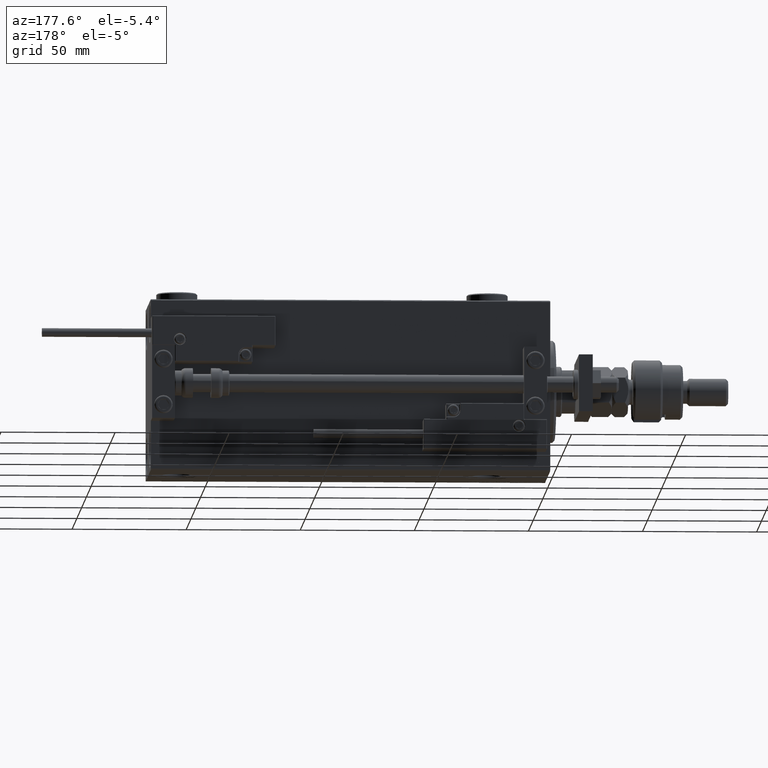
[diagram: clean part render]
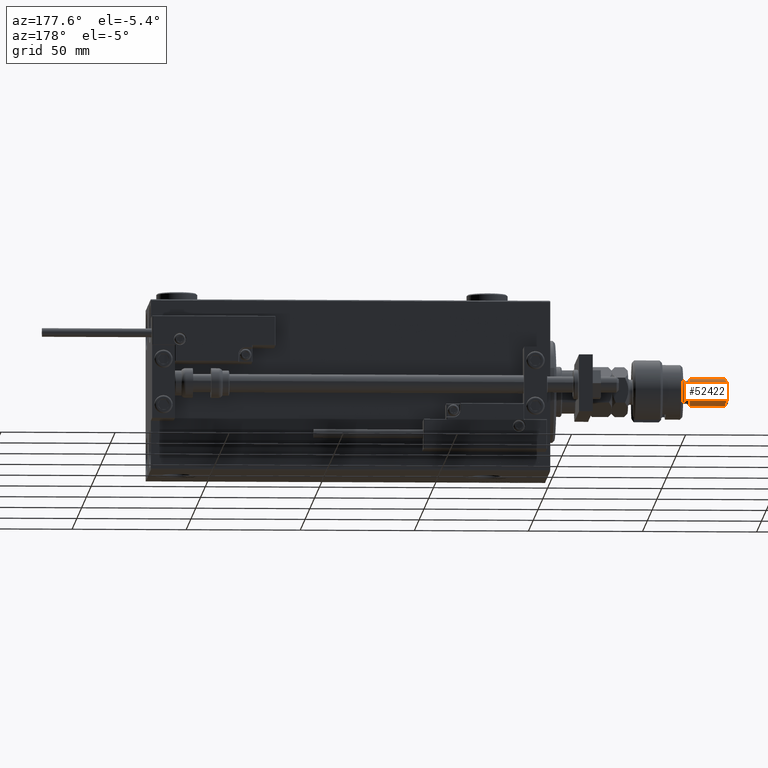
[diagram: same view with one face highlighted and labeled with its STEP entity id]
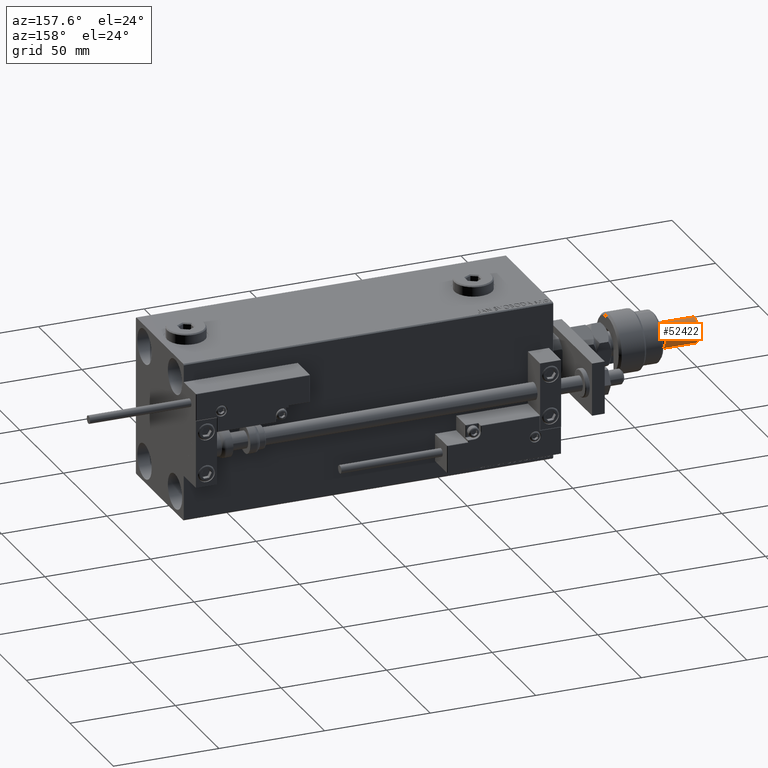
[diagram: same view with one face highlighted and labeled with its STEP entity id]
A machine part, auxiliary view. The second image highlights one B-rep face of the part: STEP entity #52422.
A second angle (auxiliary view) of the same face is appended — the face is thin or edge-on in the first view.
In plain terms, the highlighted cylindrical surface (edge-blend (fillet) strip) has radius 6 mm, axis along (1, -0, -0).
Its self-contained STEP definition (entity closure, byte-faithful):
#933 = VECTOR ( 'NONE', #22346, 1000.000000000000000 ) ;
#1511 = FACE_OUTER_BOUND ( 'NONE', #53483, .T. ) ;
#4824 = VECTOR ( 'NONE', #44621, 1000.000000000000000 ) ;
#5324 = VERTEX_POINT ( 'NONE', #31755 ) ;
#5630 = VERTEX_POINT ( 'NONE', #35557 ) ;
#9459 = LINE ( 'NONE', #47352, #933 ) ;
#13838 = EDGE_CURVE ( 'NONE', #41392, #23316, #32239, .T. ) ;
#15023 = EDGE_CURVE ( 'NONE', #5630, #23316, #31197, .T. ) ;
#15231 = CARTESIAN_POINT ( 'NONE',  ( 0.000000000000000000, 0.000000000000000000, 41.99999999999999289 ) ) ;
#15280 = DIRECTION ( 'NONE',  ( -0.000000000000000000, -0.000000000000000000, 1.000000000000000000 ) ) ;
#16880 = CARTESIAN_POINT ( 'NONE',  ( -6.000000000000000888, 0.000000000000000000, 24.99999999999999645 ) ) ;
#17232 = AXIS2_PLACEMENT_3D ( 'NONE', #15231, #18531, #40239 ) ;
#17835 = ORIENTED_EDGE ( 'NONE', *, *, #15023, .T. ) ;
#18366 = EDGE_CURVE ( 'NONE', #41392, #5324, #44520, .T. ) ;
#18531 = DIRECTION ( 'NONE',  ( -0.000000000000000000, -0.000000000000000000, -1.000000000000000000 ) ) ;
#19316 = CARTESIAN_POINT ( 'NONE',  ( -6.000000000000000888, 0.000000000000000000, 41.99999999999999289 ) ) ;
#22346 = DIRECTION ( 'NONE',  ( -0.000000000000000000, -0.000000000000000000, -1.000000000000000000 ) ) ;
#23316 = VERTEX_POINT ( 'NONE', #16880 ) ;
#23782 = DIRECTION ( 'NONE',  ( 1.000000000000000000, 0.000000000000000000, 0.000000000000000000 ) ) ;
#27972 = DIRECTION ( 'NONE',  ( 1.000000000000000000, 0.000000000000000000, 0.000000000000000000 ) ) ;
#29005 = ORIENTED_EDGE ( 'NONE', *, *, #18366, .T. ) ;
#31197 = CIRCLE ( 'NONE', #48736, 6.000000000000000888 ) ;
#31755 = CARTESIAN_POINT ( 'NONE',  ( 6.000000000000000888, 7.347880794884120722E-16, 40.99999999999997868 ) ) ;
#31822 = CARTESIAN_POINT ( 'NONE',  ( 0.000000000000000000, 0.000000000000000000, 40.99999999999997868 ) ) ;
#32239 = LINE ( 'NONE', #19316, #4824 ) ;
#35057 = EDGE_CURVE ( 'NONE', #5324, #5630, #9459, .T. ) ;
#35557 = CARTESIAN_POINT ( 'NONE',  ( 6.000000000000000888, 7.347880794884120722E-16, 24.99999999999999645 ) ) ;
#40239 = DIRECTION ( 'NONE',  ( -1.000000000000000000, 0.000000000000000000, 0.000000000000000000 ) ) ;
#41392 = VERTEX_POINT ( 'NONE', #51922 ) ;
#42746 = AXIS2_PLACEMENT_3D ( 'NONE', #31822, #49131, #27972 ) ;
#44375 = CYLINDRICAL_SURFACE ( 'NONE', #17232, 6.000000000000000888 ) ;
#44520 = CIRCLE ( 'NONE', #42746, 6.000000000000000888 ) ;
#44621 = DIRECTION ( 'NONE',  ( -0.000000000000000000, -0.000000000000000000, -1.000000000000000000 ) ) ;
#47352 = CARTESIAN_POINT ( 'NONE',  ( 6.000000000000000888, 7.347880794884120722E-16, 41.99999999999999289 ) ) ;
#48736 = AXIS2_PLACEMENT_3D ( 'NONE', #53488, #15280, #23782 ) ;
#49131 = DIRECTION ( 'NONE',  ( 0.000000000000000000, 0.000000000000000000, -1.000000000000000000 ) ) ;
#51922 = CARTESIAN_POINT ( 'NONE',  ( -6.000000000000000888, 0.000000000000000000, 40.99999999999997868 ) ) ;
#52369 = ORIENTED_EDGE ( 'NONE', *, *, #13838, .F. ) ;
#52422 = ADVANCED_FACE ( 'NONE', ( #1511 ), #44375, .T. ) ;
#53026 = ORIENTED_EDGE ( 'NONE', *, *, #35057, .T. ) ;
#53483 = EDGE_LOOP ( 'NONE', ( #29005, #53026, #17835, #52369 ) ) ;
#53488 = CARTESIAN_POINT ( 'NONE',  ( 0.000000000000000000, 0.000000000000000000, 24.99999999999999645 ) ) ;